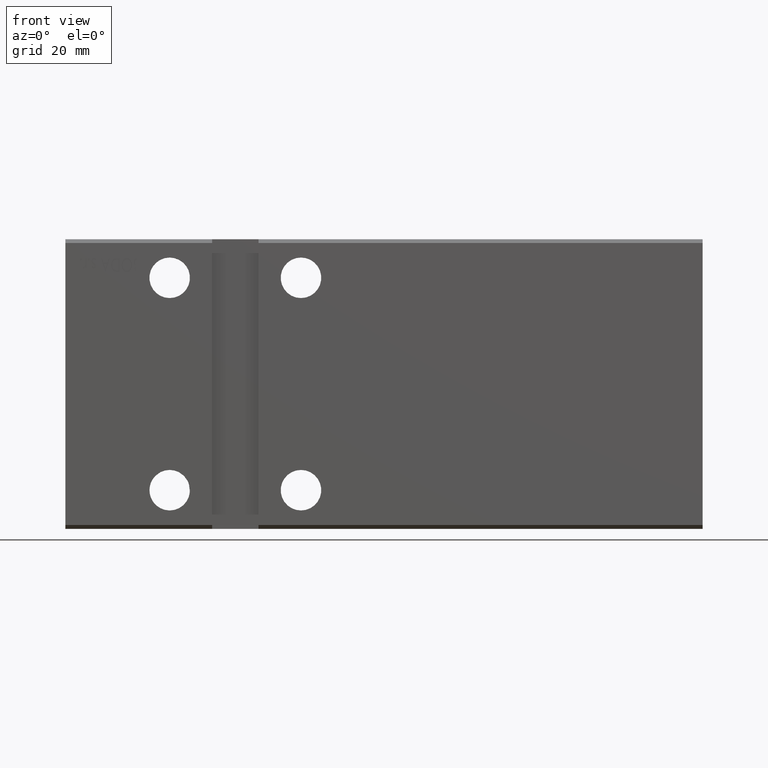
[diagram: clean part render]
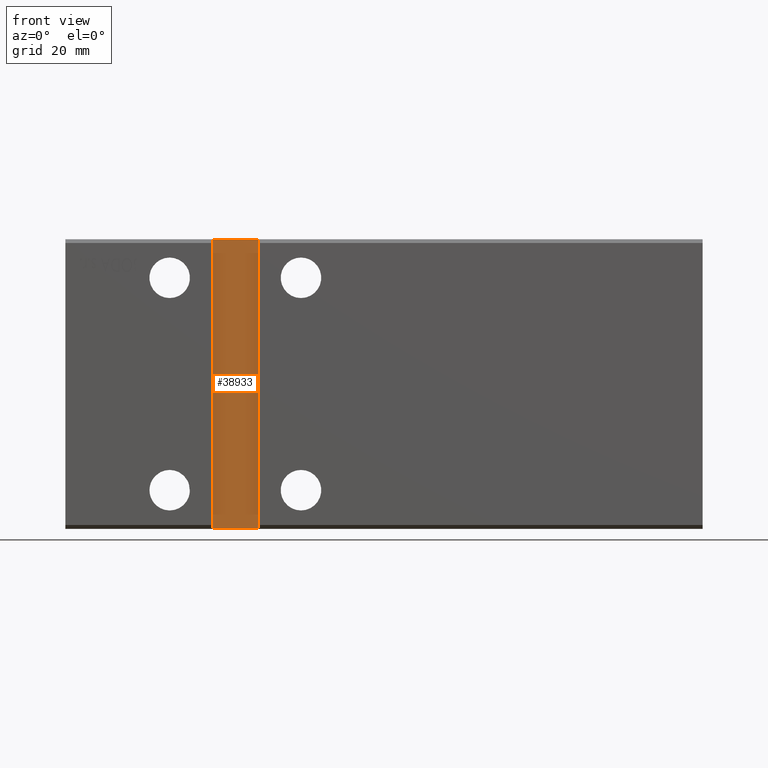
[diagram: same view with one face highlighted and labeled with its STEP entity id]
A machine part, front view. The second image highlights one B-rep face of the part: STEP entity #38933.
In plain terms, the highlighted planar face has unit normal (0, -1, -0).
Its self-contained STEP definition (entity closure, byte-faithful):
#325 = LINE ( 'NONE', #522, #18614 ) ;
#522 = CARTESIAN_POINT ( 'NONE',  ( 38.00000000000000711, -25.50000000000000355, -37.49999999999999289 ) ) ;
#2182 = CARTESIAN_POINT ( 'NONE',  ( 0.000000000000000000, -25.50000000000000355, -2.434119925021425278E-15 ) ) ;
#3918 = LINE ( 'NONE', #13473, #35184 ) ;
#4635 = LINE ( 'NONE', #16587, #35325 ) ;
#4755 = FACE_OUTER_BOUND ( 'NONE', #36592, .T. ) ;
#4977 = EDGE_CURVE ( 'NONE', #19756, #37977, #3918, .T. ) ;
#6284 = CARTESIAN_POINT ( 'NONE',  ( 38.00000000000000000, -25.50000000000000711, 37.50000000000000711 ) ) ;
#8816 = CARTESIAN_POINT ( 'NONE',  ( 38.00000000000000000, -25.50000000000000711, 37.50000000000000711 ) ) ;
#8933 = VERTEX_POINT ( 'NONE', #10286 ) ;
#9984 = EDGE_CURVE ( 'NONE', #8933, #19756, #325, .T. ) ;
#10286 = CARTESIAN_POINT ( 'NONE',  ( 38.00000000000000711, -25.50000000000000355, -37.49999999999999289 ) ) ;
#11325 = EDGE_CURVE ( 'NONE', #25834, #8933, #14397, .T. ) ;
#11802 = DIRECTION ( 'NONE',  ( 9.251858538542971581E-17, 9.251858538542971581E-17, -1.000000000000000000 ) ) ;
#13473 = CARTESIAN_POINT ( 'NONE',  ( 49.99999999999999289, -25.50000000000000711, 37.50000000000000711 ) ) ;
#13792 = DIRECTION ( 'NONE',  ( -1.000000000000000000, -0.000000000000000000, -0.000000000000000000 ) ) ;
#14397 = LINE ( 'NONE', #8816, #23742 ) ;
#15713 = ORIENTED_EDGE ( 'NONE', *, *, #11325, .T. ) ;
#16356 = EDGE_CURVE ( 'NONE', #37977, #25834, #4635, .T. ) ;
#16480 = ORIENTED_EDGE ( 'NONE', *, *, #9984, .T. ) ;
#16587 = CARTESIAN_POINT ( 'NONE',  ( 38.00000000000000000, -25.50000000000000711, 37.50000000000000711 ) ) ;
#16715 = DIRECTION ( 'NONE',  ( 0.000000000000000000, -1.000000000000000000, -9.251858538542971581E-17 ) ) ;
#17508 = PLANE ( 'NONE',  #27461 ) ;
#18614 = VECTOR ( 'NONE', #25219, 1000.000000000000000 ) ;
#19756 = VERTEX_POINT ( 'NONE', #32299 ) ;
#23742 = VECTOR ( 'NONE', #11802, 1000.000000000000000 ) ;
#25219 = DIRECTION ( 'NONE',  ( 1.000000000000000000, 0.000000000000000000, 0.000000000000000000 ) ) ;
#25834 = VERTEX_POINT ( 'NONE', #6284 ) ;
#27461 = AXIS2_PLACEMENT_3D ( 'NONE', #2182, #16715, #32075 ) ;
#27700 = ORIENTED_EDGE ( 'NONE', *, *, #16356, .T. ) ;
#31817 = DIRECTION ( 'NONE',  ( -1.850371707708594316E-16, -9.251858538542971581E-17, 1.000000000000000000 ) ) ;
#32075 = DIRECTION ( 'NONE',  ( 0.000000000000000000, 9.251858538542971581E-17, -1.000000000000000000 ) ) ;
#32299 = CARTESIAN_POINT ( 'NONE',  ( 50.00000000000000711, -25.50000000000000355, -37.49999999999999289 ) ) ;
#35184 = VECTOR ( 'NONE', #31817, 1000.000000000000000 ) ;
#35325 = VECTOR ( 'NONE', #13792, 1000.000000000000000 ) ;
#35461 = CARTESIAN_POINT ( 'NONE',  ( 49.99999999999999289, -25.50000000000000711, 37.50000000000000711 ) ) ;
#36592 = EDGE_LOOP ( 'NONE', ( #38680, #27700, #15713, #16480 ) ) ;
#37977 = VERTEX_POINT ( 'NONE', #35461 ) ;
#38680 = ORIENTED_EDGE ( 'NONE', *, *, #4977, .T. ) ;
#38933 = ADVANCED_FACE ( 'NONE', ( #4755 ), #17508, .T. ) ;